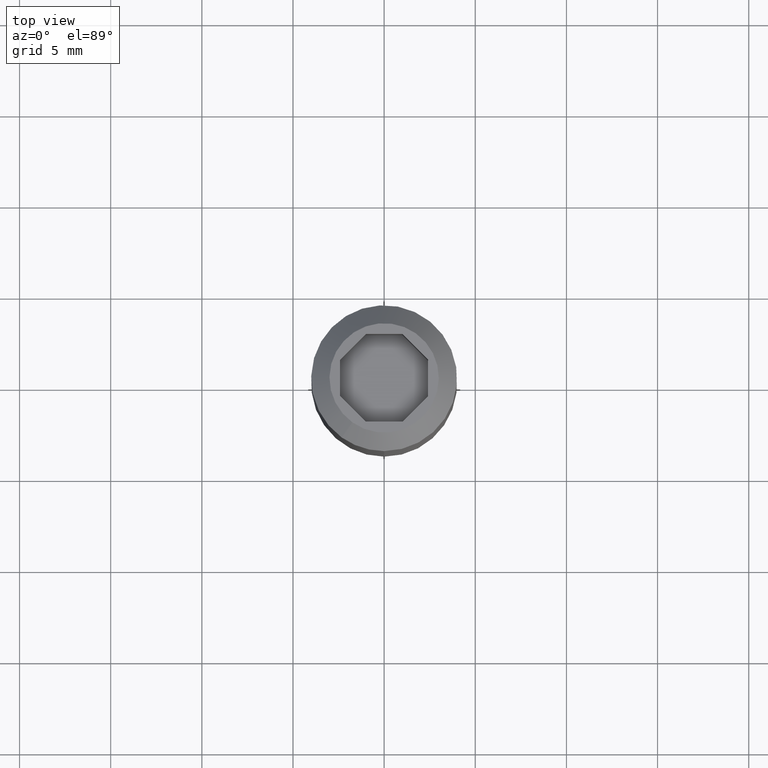
[diagram: clean part render]
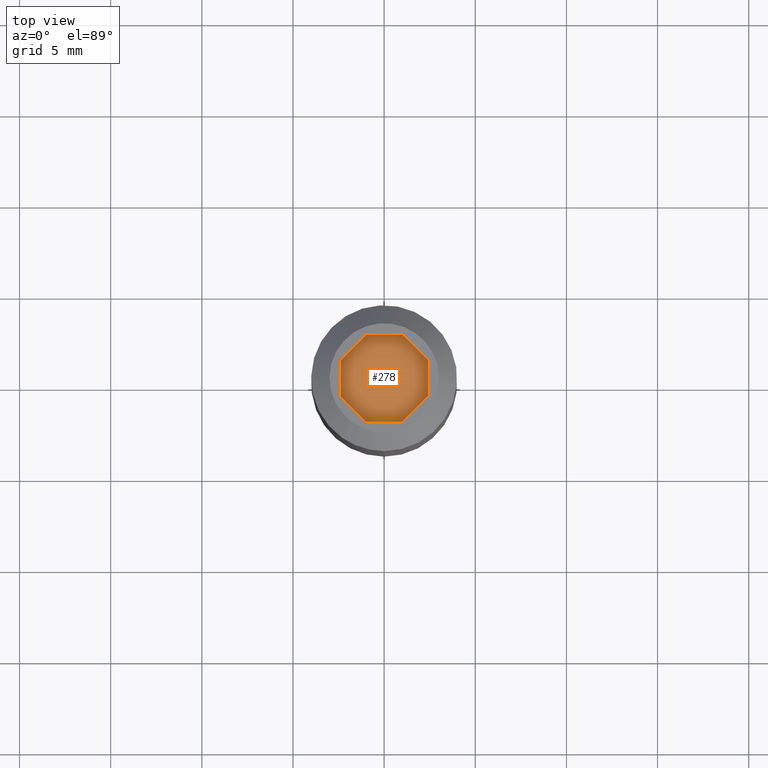
[diagram: same view with one face highlighted and labeled with its STEP entity id]
A machine part, top view. The second image highlights one B-rep face of the part: STEP entity #278.
In plain terms, the highlighted planar face has unit normal (0, 0, 1).
Its self-contained STEP definition (entity closure, byte-faithful):
#28=PLANE('',#325);
#46=FACE_OUTER_BOUND('',#64,.T.);
#64=EDGE_LOOP('',(#253,#254,#255,#256,#257,#258,#259,#260));
#78=LINE('',#452,#106);
#80=LINE('',#456,#108);
#82=LINE('',#460,#110);
#84=LINE('',#464,#112);
#86=LINE('',#468,#114);
#88=LINE('',#472,#116);
#90=LINE('',#476,#118);
#92=LINE('',#479,#120);
#106=VECTOR('',#373,2.);
#108=VECTOR('',#377,2.00000000000001);
#110=VECTOR('',#381,2.);
#112=VECTOR('',#385,2.00000000000001);
#114=VECTOR('',#389,2.);
#116=VECTOR('',#393,2.00000000000001);
#118=VECTOR('',#397,2.);
#120=VECTOR('',#401,2.00000000000001);
#145=VERTEX_POINT('',#449);
#146=VERTEX_POINT('',#451);
#147=VERTEX_POINT('',#455);
#148=VERTEX_POINT('',#459);
#149=VERTEX_POINT('',#463);
#150=VERTEX_POINT('',#467);
#151=VERTEX_POINT('',#471);
#152=VERTEX_POINT('',#475);
#174=EDGE_CURVE('',#145,#146,#78,.T.);
#176=EDGE_CURVE('',#146,#147,#80,.T.);
#178=EDGE_CURVE('',#147,#148,#82,.T.);
#180=EDGE_CURVE('',#148,#149,#84,.T.);
#182=EDGE_CURVE('',#149,#150,#86,.T.);
#184=EDGE_CURVE('',#150,#151,#88,.T.);
#186=EDGE_CURVE('',#151,#152,#90,.T.);
#188=EDGE_CURVE('',#152,#145,#92,.T.);
#253=ORIENTED_EDGE('',*,*,#174,.F.);
#254=ORIENTED_EDGE('',*,*,#188,.F.);
#255=ORIENTED_EDGE('',*,*,#186,.F.);
#256=ORIENTED_EDGE('',*,*,#184,.F.);
#257=ORIENTED_EDGE('',*,*,#182,.F.);
#258=ORIENTED_EDGE('',*,*,#180,.F.);
#259=ORIENTED_EDGE('',*,*,#178,.F.);
#260=ORIENTED_EDGE('',*,*,#176,.F.);
#278=ADVANCED_FACE('',(#46),#28,.T.);
#325=AXIS2_PLACEMENT_3D('',#480,#402,#403);
#373=DIRECTION('',(-1.,0.,0.));
#377=DIRECTION('',(-0.707106781186547,0.707106781186548,0.));
#381=DIRECTION('',(0.,1.,0.));
#385=DIRECTION('',(0.707106781186548,0.707106781186548,0.));
#389=DIRECTION('',(1.,0.,0.));
#393=DIRECTION('',(0.707106781186548,-0.707106781186547,0.));
#397=DIRECTION('',(0.,-1.,0.));
#401=DIRECTION('',(-0.707106781186547,-0.707106781186548,0.));
#402=DIRECTION('center_axis',(0.,0.,1.));
#403=DIRECTION('ref_axis',(1.,0.,0.));
#449=CARTESIAN_POINT('',(1.,-2.41421356237309,15.5));
#451=CARTESIAN_POINT('',(-1.,-2.41421356237309,15.5));
#452=CARTESIAN_POINT('',(1.,-2.41421356237309,15.5));
#455=CARTESIAN_POINT('',(-2.41421356237311,-0.999999999999998,15.5));
#456=CARTESIAN_POINT('',(-1.,-2.41421356237309,15.5));
#459=CARTESIAN_POINT('',(-2.41421356237311,1.,15.5));
#460=CARTESIAN_POINT('',(-2.41421356237311,-0.999999999999998,15.5));
#463=CARTESIAN_POINT('',(-1.,2.4142135623731,15.5));
#464=CARTESIAN_POINT('',(-2.4142135623731,0.999999999999994,15.5));
#467=CARTESIAN_POINT('',(1.,2.4142135623731,15.5));
#468=CARTESIAN_POINT('',(-1.,2.4142135623731,15.5));
#471=CARTESIAN_POINT('',(2.41421356237311,1.,15.5));
#472=CARTESIAN_POINT('',(1.,2.4142135623731,15.5));
#475=CARTESIAN_POINT('',(2.41421356237311,-0.999999999999998,15.5));
#476=CARTESIAN_POINT('',(2.41421356237311,1.,15.5));
#479=CARTESIAN_POINT('',(2.4142135623731,-0.99999999999999,15.5));
#480=CARTESIAN_POINT('Origin',(2.65563491861042,2.65563491861041,15.5));